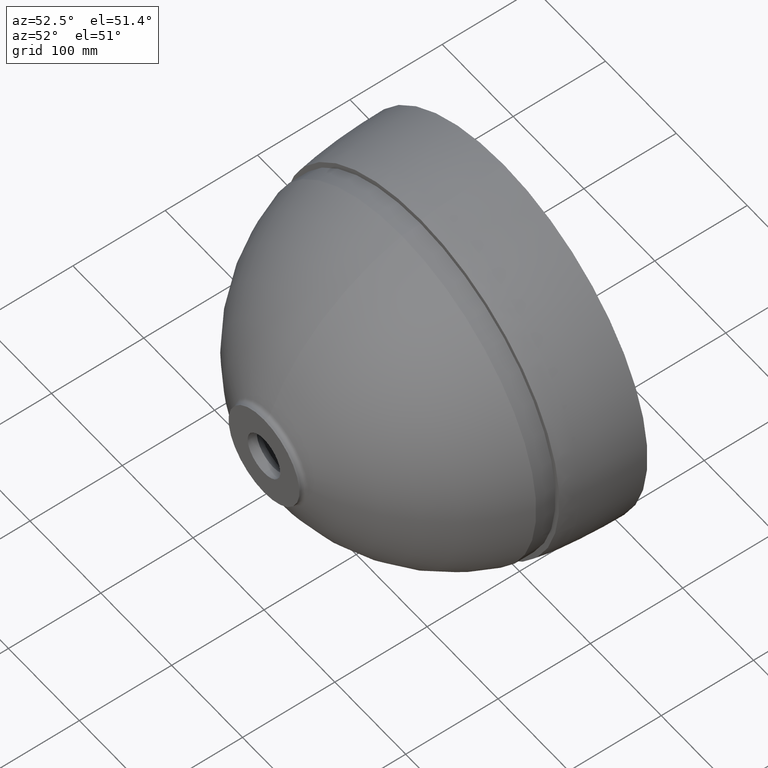
[diagram: clean part render]
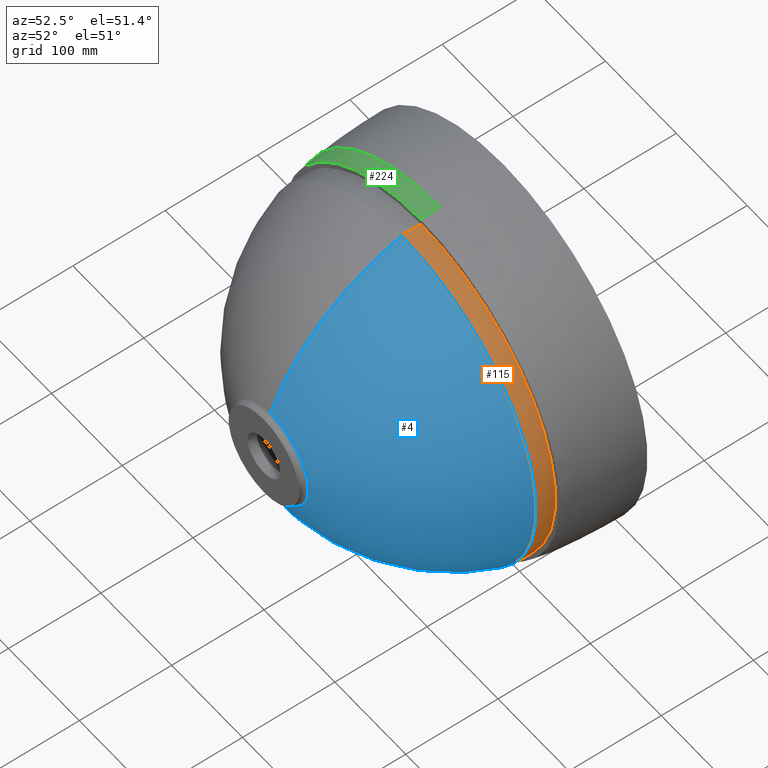
[diagram: same view with three faces highlighted in distinct colors, each labeled with its STEP entity id]
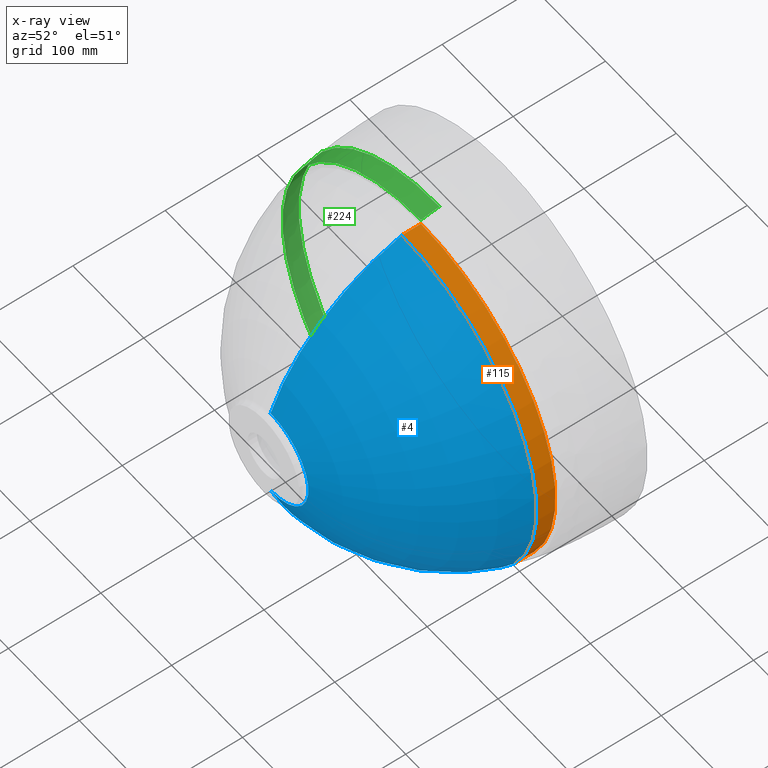
[diagram: x-ray of the same camera — body ghosted, the three highlighted faces saturated]
A machine part, auxiliary view with three faces highlighted in distinct colors.
The next image is the same camera in x-ray (body ghosted, the three faces saturated) — at least one of them is partly hidden behind the body in this view.
Their STEP definitions:

[orange] entity #115 — the highlighted cylindrical surface (partial cylindrical patch) has radius 190 mm, axis along (-0, -1, -0).
#10 = VERTEX_POINT ( 'NONE', #530 ) ;
#21 = DIRECTION ( 'NONE',  ( 0.0000000000000000000, 0.0000000000000000000, -1.000000000000000000 ) ) ;
#48 = LINE ( 'NONE', #125, #468 ) ;
#60 = ORIENTED_EDGE ( 'NONE', *, *, #413, .T. ) ;
#64 = FACE_OUTER_BOUND ( 'NONE', #312, .T. ) ;
#94 = DIRECTION ( 'NONE',  ( 0.0000000000000000000, 0.0000000000000000000, -1.000000000000000000 ) ) ;
#115 = ADVANCED_FACE ( 'NONE', ( #64 ), #343, .T. ) ;
#125 = CARTESIAN_POINT ( 'NONE',  ( 0.0000000000000000000, -36.83810861832611700, -190.0000000000000000 ) ) ;
#133 = CARTESIAN_POINT ( 'NONE',  ( 2.326828918379971300E-014, 170.0000000000000000, 190.0000000000000000 ) ) ;
#139 = CIRCLE ( 'NONE', #384, 190.0000000000000000 ) ;
#195 = DIRECTION ( 'NONE',  ( -0.0000000000000000000, -1.000000000000000000, -0.0000000000000000000 ) ) ;
#221 = DIRECTION ( 'NONE',  ( -0.0000000000000000000, -1.000000000000000000, -0.0000000000000000000 ) ) ;
#256 = CARTESIAN_POINT ( 'NONE',  ( 0.0000000000000000000, -36.83810861832611700, 0.0000000000000000000 ) ) ;
#257 = CARTESIAN_POINT ( 'NONE',  ( 0.0000000000000000000, 170.0000000000000000, 0.0000000000000000000 ) ) ;
#270 = CARTESIAN_POINT ( 'NONE',  ( 0.0000000000000000000, 149.1182631843105400, 0.0000000000000000000 ) ) ;
#277 = ORIENTED_EDGE ( 'NONE', *, *, #686, .F. ) ;
#308 = CARTESIAN_POINT ( 'NONE',  ( 0.0000000000000000000, 149.1182631843105400, -189.9999999999999700 ) ) ;
#312 = EDGE_LOOP ( 'NONE', ( #60, #671, #277, #654 ) ) ;
#319 = CARTESIAN_POINT ( 'NONE',  ( 2.326828918379971300E-014, -36.83810861832611700, 190.0000000000000000 ) ) ;
#331 = EDGE_CURVE ( 'NONE', #461, #562, #615, .T. ) ;
#343 = CYLINDRICAL_SURFACE ( 'NONE', #524, 190.0000000000000000 ) ;
#384 = AXIS2_PLACEMENT_3D ( 'NONE', #257, #487, #94 ) ;
#412 = VERTEX_POINT ( 'NONE', #308 ) ;
#413 = EDGE_CURVE ( 'NONE', #10, #461, #139, .T. ) ;
#461 = VERTEX_POINT ( 'NONE', #133 ) ;
#462 = DIRECTION ( 'NONE',  ( 0.0000000000000000000, 0.0000000000000000000, -1.000000000000000000 ) ) ;
#463 = EDGE_CURVE ( 'NONE', #10, #412, #48, .T. ) ;
#468 = VECTOR ( 'NONE', #512, 1000.000000000000000 ) ;
#487 = DIRECTION ( 'NONE',  ( -0.0000000000000000000, -1.000000000000000000, -0.0000000000000000000 ) ) ;
#512 = DIRECTION ( 'NONE',  ( -0.0000000000000000000, -1.000000000000000000, -0.0000000000000000000 ) ) ;
#522 = CIRCLE ( 'NONE', #608, 189.9999999999999700 ) ;
#524 = AXIS2_PLACEMENT_3D ( 'NONE', #256, #545, #462 ) ;
#530 = CARTESIAN_POINT ( 'NONE',  ( 0.0000000000000000000, 170.0000000000000000, -190.0000000000000000 ) ) ;
#535 = CARTESIAN_POINT ( 'NONE',  ( 2.326828918379971000E-014, 149.1182631843105400, 189.9999999999999700 ) ) ;
#545 = DIRECTION ( 'NONE',  ( -0.0000000000000000000, -1.000000000000000000, -0.0000000000000000000 ) ) ;
#562 = VERTEX_POINT ( 'NONE', #535 ) ;
#608 = AXIS2_PLACEMENT_3D ( 'NONE', #270, #221, #21 ) ;
#613 = VECTOR ( 'NONE', #195, 1000.000000000000000 ) ;
#615 = LINE ( 'NONE', #319, #613 ) ;
#654 = ORIENTED_EDGE ( 'NONE', *, *, #463, .F. ) ;
#671 = ORIENTED_EDGE ( 'NONE', *, *, #331, .T. ) ;
#686 = EDGE_CURVE ( 'NONE', #412, #562, #522, .T. ) ;

[blue] entity #4 — the highlighted toroidal blend (fillet) surface has major radius 20.0439 mm and minor (blend) radius 220 mm.
#4 = ADVANCED_FACE ( 'NONE', ( #101 ), #164, .T. ) ;
#21 = DIRECTION ( 'NONE',  ( 0.0000000000000000000, 0.0000000000000000000, -1.000000000000000000 ) ) ;
#25 = DIRECTION ( 'NONE',  ( 0.0000000000000000000, 0.0000000000000000000, 1.000000000000000000 ) ) ;
#42 = CARTESIAN_POINT ( 'NONE',  ( 0.0000000000000000000, 214.5517857468367100, 0.0000000000000000000 ) ) ;
#46 = VERTEX_POINT ( 'NONE', #602 ) ;
#51 = EDGE_CURVE ( 'NONE', #562, #46, #260, .T. ) ;
#101 = FACE_OUTER_BOUND ( 'NONE', #621, .T. ) ;
#102 = ORIENTED_EDGE ( 'NONE', *, *, #364, .F. ) ;
#105 = DIRECTION ( 'NONE',  ( -0.0000000000000000000, -1.000000000000000000, -0.0000000000000000000 ) ) ;
#120 = ORIENTED_EDGE ( 'NONE', *, *, #598, .F. ) ;
#126 = AXIS2_PLACEMENT_3D ( 'NONE', #333, #649, #25 ) ;
#156 = ORIENTED_EDGE ( 'NONE', *, *, #686, .T. ) ;
#164 = TOROIDAL_SURFACE ( 'NONE', #339, -20.04393379733535600, 220.0000000000000300 ) ;
#182 = VERTEX_POINT ( 'NONE', #655 ) ;
#187 = CARTESIAN_POINT ( 'NONE',  ( 0.0000000000000000000, 7.148989370069442000, 0.0000000000000000000 ) ) ;
#221 = DIRECTION ( 'NONE',  ( -0.0000000000000000000, -1.000000000000000000, -0.0000000000000000000 ) ) ;
#243 = DIRECTION ( 'NONE',  ( 0.0000000000000000000, 0.0000000000000000000, -1.000000000000000000 ) ) ;
#260 = CIRCLE ( 'NONE', #376, 220.0000000000000300 ) ;
#270 = CARTESIAN_POINT ( 'NONE',  ( 0.0000000000000000000, 149.1182631843105400, 0.0000000000000000000 ) ) ;
#299 = AXIS2_PLACEMENT_3D ( 'NONE', #187, #528, #632 ) ;
#308 = CARTESIAN_POINT ( 'NONE',  ( 0.0000000000000000000, 149.1182631843105400, -189.9999999999999700 ) ) ;
#333 = CARTESIAN_POINT ( 'NONE',  ( 0.0000000000000000000, 214.5517857468367100, 20.04393379733535600 ) ) ;
#339 = AXIS2_PLACEMENT_3D ( 'NONE', #42, #105, #243 ) ;
#364 = EDGE_CURVE ( 'NONE', #412, #182, #474, .T. ) ;
#369 = ORIENTED_EDGE ( 'NONE', *, *, #51, .T. ) ;
#371 = CARTESIAN_POINT ( 'NONE',  ( -2.454673936722819900E-015, 214.5517857468367100, -20.04393379733535600 ) ) ;
#376 = AXIS2_PLACEMENT_3D ( 'NONE', #371, #571, #635 ) ;
#412 = VERTEX_POINT ( 'NONE', #308 ) ;
#474 = CIRCLE ( 'NONE', #126, 220.0000000000000300 ) ;
#522 = CIRCLE ( 'NONE', #608, 189.9999999999999700 ) ;
#528 = DIRECTION ( 'NONE',  ( -0.0000000000000000000, -1.000000000000000000, -0.0000000000000000000 ) ) ;
#535 = CARTESIAN_POINT ( 'NONE',  ( 2.326828918379971000E-014, 149.1182631843105400, 189.9999999999999700 ) ) ;
#562 = VERTEX_POINT ( 'NONE', #535 ) ;
#571 = DIRECTION ( 'NONE',  ( 1.000000000000000000, 0.0000000000000000000, -1.224646799147353200E-016 ) ) ;
#598 = EDGE_CURVE ( 'NONE', #182, #46, #669, .T. ) ;
#602 = CARTESIAN_POINT ( 'NONE',  ( 1.489980960808803700E-014, 7.148989370069442000, 53.33235702672588000 ) ) ;
#608 = AXIS2_PLACEMENT_3D ( 'NONE', #270, #221, #21 ) ;
#621 = EDGE_LOOP ( 'NONE', ( #156, #369, #120, #102 ) ) ;
#632 = DIRECTION ( 'NONE',  ( 0.0000000000000000000, 0.0000000000000000000, -1.000000000000000000 ) ) ;
#635 = DIRECTION ( 'NONE',  ( -1.224646799147353500E-016, 0.0000000000000000000, -1.000000000000000000 ) ) ;
#649 = DIRECTION ( 'NONE',  ( -1.000000000000000000, 0.0000000000000000000, 0.0000000000000000000 ) ) ;
#655 = CARTESIAN_POINT ( 'NONE',  ( 0.0000000000000000000, 7.148989370069442000, -53.33235702672588000 ) ) ;
#669 = CIRCLE ( 'NONE', #299, 53.33235702672588000 ) ;
#686 = EDGE_CURVE ( 'NONE', #412, #562, #522, .T. ) ;

[green] entity #224 — the highlighted toroidal blend (fillet) surface has major radius 20.0439 mm and minor (blend) radius 220 mm.
#32 = ORIENTED_EDGE ( 'NONE', *, *, #220, .F. ) ;
#36 = CARTESIAN_POINT ( 'NONE',  ( 0.0000000000000000000, 214.5517857468367100, 20.04393379733535600 ) ) ;
#37 = AXIS2_PLACEMENT_3D ( 'NONE', #418, #620, #138 ) ;
#44 = FACE_OUTER_BOUND ( 'NONE', #50, .T. ) ;
#50 = EDGE_LOOP ( 'NONE', ( #351, #587, #484, #32 ) ) ;
#121 = DIRECTION ( 'NONE',  ( 0.0000000000000000000, 0.0000000000000000000, -1.000000000000000000 ) ) ;
#138 = DIRECTION ( 'NONE',  ( 0.0000000000000000000, 0.0000000000000000000, -1.000000000000000000 ) ) ;
#169 = DIRECTION ( 'NONE',  ( -1.224646799147353200E-016, 0.0000000000000000000, -1.000000000000000000 ) ) ;
#220 = EDGE_CURVE ( 'NONE', #565, #623, #691, .T. ) ;
#224 = ADVANCED_FACE ( 'NONE', ( #44 ), #659, .T. ) ;
#288 = EDGE_CURVE ( 'NONE', #681, #623, #436, .T. ) ;
#334 = VERTEX_POINT ( 'NONE', #357 ) ;
#349 = CARTESIAN_POINT ( 'NONE',  ( -2.454673936722819900E-015, 214.5517857468367100, -20.04393379733535600 ) ) ;
#351 = ORIENTED_EDGE ( 'NONE', *, *, #604, .F. ) ;
#357 = CARTESIAN_POINT ( 'NONE',  ( 2.455917689559837200E-014, 189.9999999999998600, 198.5817961994823700 ) ) ;
#370 = AXIS2_PLACEMENT_3D ( 'NONE', #349, #459, #169 ) ;
#391 = CARTESIAN_POINT ( 'NONE',  ( 0.0000000000000000000, 189.9999999999998600, -198.5817961994824000 ) ) ;
#394 = DIRECTION ( 'NONE',  ( -0.0000000000000000000, -1.000000000000000000, -0.0000000000000000000 ) ) ;
#418 = CARTESIAN_POINT ( 'NONE',  ( 0.0000000000000000000, 189.9999999999998600, 0.0000000000000000000 ) ) ;
#428 = CIRCLE ( 'NONE', #370, 220.0000000000000900 ) ;
#436 = CIRCLE ( 'NONE', #438, 220.0000000000000900 ) ;
#438 = AXIS2_PLACEMENT_3D ( 'NONE', #36, #469, #676 ) ;
#453 = CARTESIAN_POINT ( 'NONE',  ( 0.0000000000000000000, 170.0000000000000000, -195.3977947205355600 ) ) ;
#456 = AXIS2_PLACEMENT_3D ( 'NONE', #601, #394, #121 ) ;
#459 = DIRECTION ( 'NONE',  ( 1.000000000000000000, 0.0000000000000000000, -1.224646799147353200E-016 ) ) ;
#465 = CARTESIAN_POINT ( 'NONE',  ( 2.412429224747918000E-014, 170.0000000000000000, 195.3977947205355600 ) ) ;
#469 = DIRECTION ( 'NONE',  ( -1.000000000000000000, 0.0000000000000000000, 0.0000000000000000000 ) ) ;
#484 = ORIENTED_EDGE ( 'NONE', *, *, #288, .T. ) ;
#498 = CARTESIAN_POINT ( 'NONE',  ( 0.0000000000000000000, 170.0000000000000000, 0.0000000000000000000 ) ) ;
#531 = EDGE_CURVE ( 'NONE', #334, #681, #614, .T. ) ;
#544 = DIRECTION ( 'NONE',  ( -0.0000000000000000000, -1.000000000000000000, -0.0000000000000000000 ) ) ;
#565 = VERTEX_POINT ( 'NONE', #465 ) ;
#586 = AXIS2_PLACEMENT_3D ( 'NONE', #498, #544, #595 ) ;
#587 = ORIENTED_EDGE ( 'NONE', *, *, #531, .T. ) ;
#595 = DIRECTION ( 'NONE',  ( 0.0000000000000000000, 0.0000000000000000000, -1.000000000000000000 ) ) ;
#601 = CARTESIAN_POINT ( 'NONE',  ( 0.0000000000000000000, 214.5517857468367100, 0.0000000000000000000 ) ) ;
#604 = EDGE_CURVE ( 'NONE', #334, #565, #428, .T. ) ;
#614 = CIRCLE ( 'NONE', #37, 198.5817961994824000 ) ;
#620 = DIRECTION ( 'NONE',  ( -0.0000000000000000000, -1.000000000000000000, -0.0000000000000000000 ) ) ;
#623 = VERTEX_POINT ( 'NONE', #453 ) ;
#659 = TOROIDAL_SURFACE ( 'NONE', #456, -20.04393379733535600, 220.0000000000000900 ) ;
#676 = DIRECTION ( 'NONE',  ( 0.0000000000000000000, 0.0000000000000000000, 1.000000000000000000 ) ) ;
#681 = VERTEX_POINT ( 'NONE', #391 ) ;
#691 = CIRCLE ( 'NONE', #586, 195.3977947205355600 ) ;